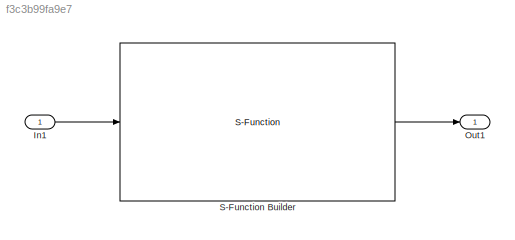
MODEL slx_f3c3b99fa9e7
KIND model
CONFIG AbsTol = auto
CONFIG EnableMultiTasking = off
CONFIG FixedStep = auto
CONFIG MaxStep = auto
CONFIG MinStep = auto
CONFIG RelTol = 1e-3
CONFIG SampleTimeConstraint = Unconstrained
CONFIG SolverName = VariableStepAuto
CONFIG StartTime = (i-1)*Ts
CONFIG StopTime = i*Ts
BLOCK [Inport] In1
BLOCK [Outport] Out1
BLOCK [S-Function] S-Function Builder
  CopyFcn = set_param(gcbh,'LinkStatus','none')
  EnableBusSupport = off
  FunctionName = ball_beam
  OpenFcn = sfunctionwizard(gcbh)
  Parameters = x0,parameters
  Ports = [1, 1]
  SFcnIsStateOwnerBlock = off
  SFunctionDeploymentMode = off
LINE In1:1 -> S-Function Builder:1
LINE S-Function Builder:1 -> Out1:1
